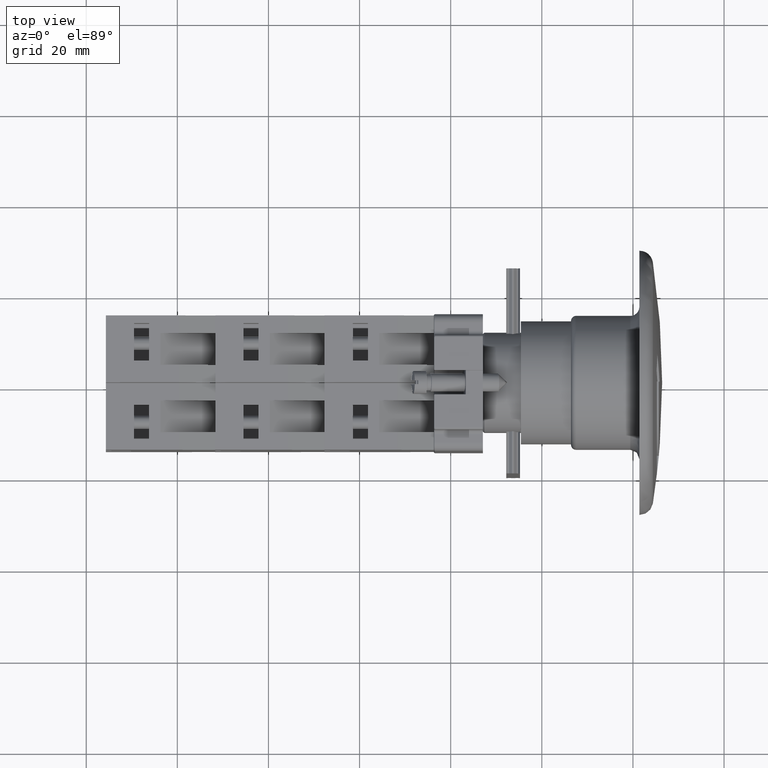
[diagram: clean part render]
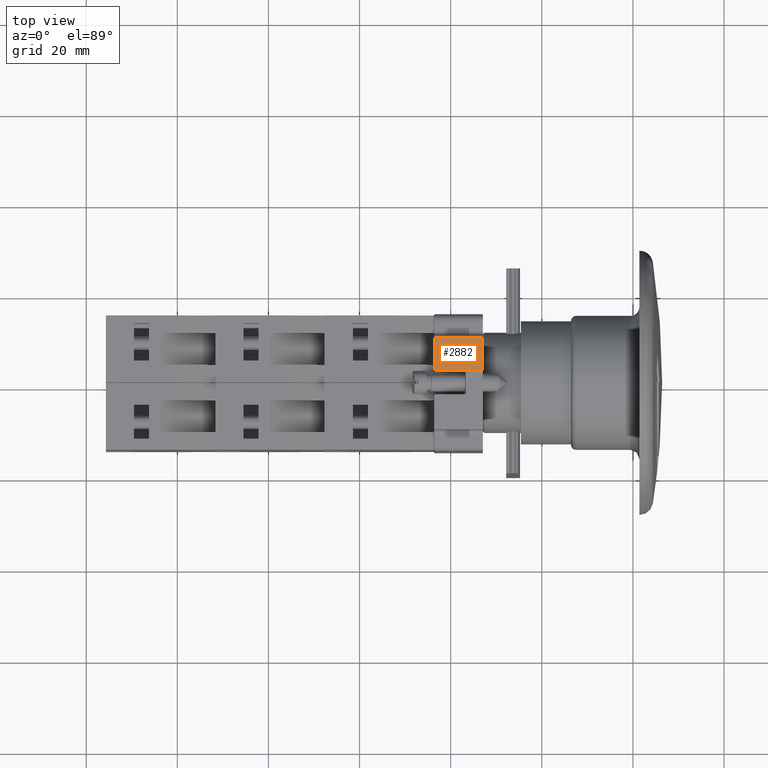
[diagram: same view with one face highlighted and labeled with its STEP entity id]
A machine part, top view. The second image highlights one B-rep face of the part: STEP entity #2882.
In plain terms, the highlighted planar face has unit normal (0, -0, 1).
Its self-contained STEP definition (entity closure, byte-faithful):
#1490=CARTESIAN_POINT('',(20.617219691723896,20.017864828157556,10.500000000000000));
#1491=VERTEX_POINT('',#1490);
#1509=CARTESIAN_POINT('',(20.617219691723896,12.817864828157555,10.500000000000000));
#1510=VERTEX_POINT('',#1509);
#1518=CARTESIAN_POINT('',(20.617219691723896,12.817864828157555,10.500000000000000));
#1519=DIRECTION('',(0.0,1.0,0.0));
#1520=VECTOR('',#1519,7.200000000000001);
#1521=LINE('',#1518,#1520);
#1522=EDGE_CURVE('',#1510,#1491,#1521,.T.);
#2840=CARTESIAN_POINT('',(20.617219691723896,20.017864828157556,0.0));
#2841=VERTEX_POINT('',#2840);
#2842=CARTESIAN_POINT('',(20.617219691723896,20.017864828157556,0.0));
#2843=DIRECTION('',(0.0,0.0,1.0));
#2844=VECTOR('',#2843,10.500000000000000);
#2845=LINE('',#2842,#2844);
#2846=EDGE_CURVE('',#2841,#1491,#2845,.T.);
#2859=CARTESIAN_POINT('',(20.617219691723896,20.017864828157556,0.0));
#2860=DIRECTION('',(1.0,0.0,0.0));
#2861=DIRECTION('',(0.0,0.0,-1.0));
#2862=AXIS2_PLACEMENT_3D('',#2859,#2860,#2861);
#2863=PLANE('',#2862);
#2864=ORIENTED_EDGE('',*,*,#1522,.F.);
#2865=CARTESIAN_POINT('',(20.617219691723896,12.817864828157555,0.0));
#2866=VERTEX_POINT('',#2865);
#2867=CARTESIAN_POINT('',(20.617219691723896,12.817864828157555,0.0));
#2868=DIRECTION('',(0.0,0.0,1.0));
#2869=VECTOR('',#2868,10.500000000000000);
#2870=LINE('',#2867,#2869);
#2871=EDGE_CURVE('',#2866,#1510,#2870,.T.);
#2872=ORIENTED_EDGE('',*,*,#2871,.F.);
#2873=CARTESIAN_POINT('',(20.617219691723896,12.817864828157555,0.0));
#2874=DIRECTION('',(0.0,1.0,0.0));
#2875=VECTOR('',#2874,7.200000000000001);
#2876=LINE('',#2873,#2875);
#2877=EDGE_CURVE('',#2866,#2841,#2876,.T.);
#2878=ORIENTED_EDGE('',*,*,#2877,.T.);
#2879=ORIENTED_EDGE('',*,*,#2846,.T.);
#2880=EDGE_LOOP('',(#2864,#2872,#2878,#2879));
#2881=FACE_OUTER_BOUND('',#2880,.T.);
#2882=ADVANCED_FACE('',(#2881),#2863,.T.);